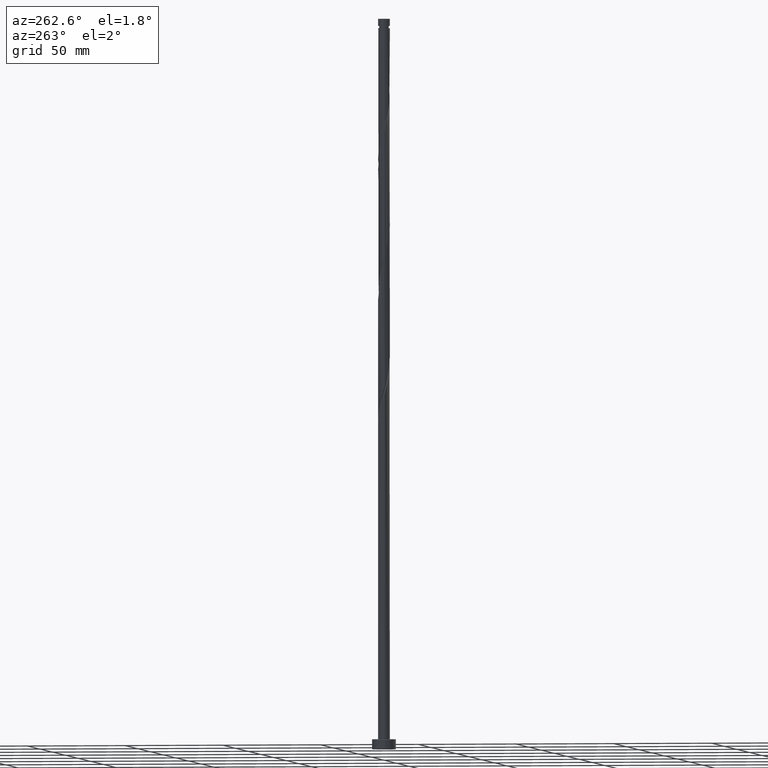
[diagram: clean part render]
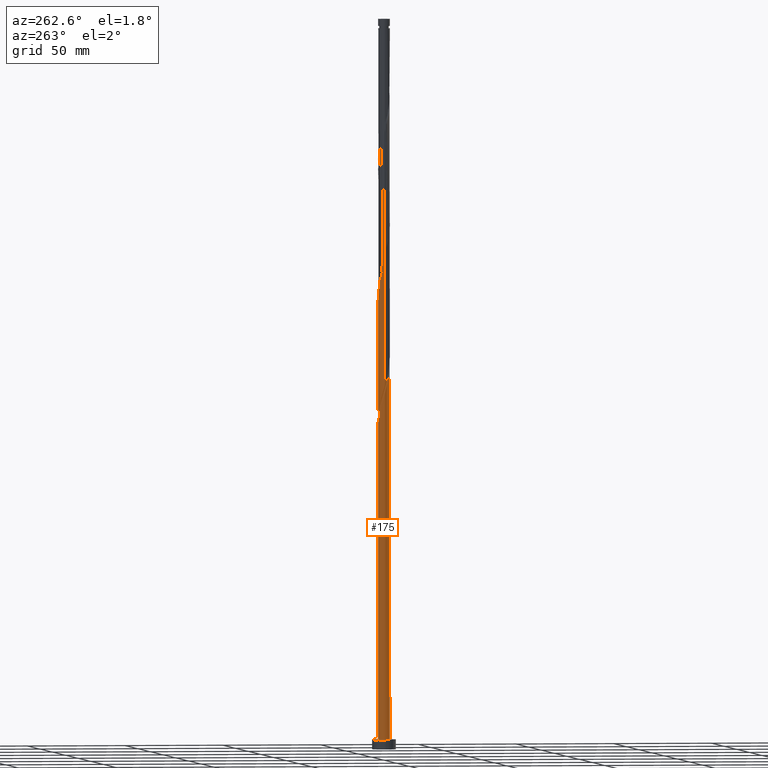
[diagram: same view with one face highlighted and labeled with its STEP entity id]
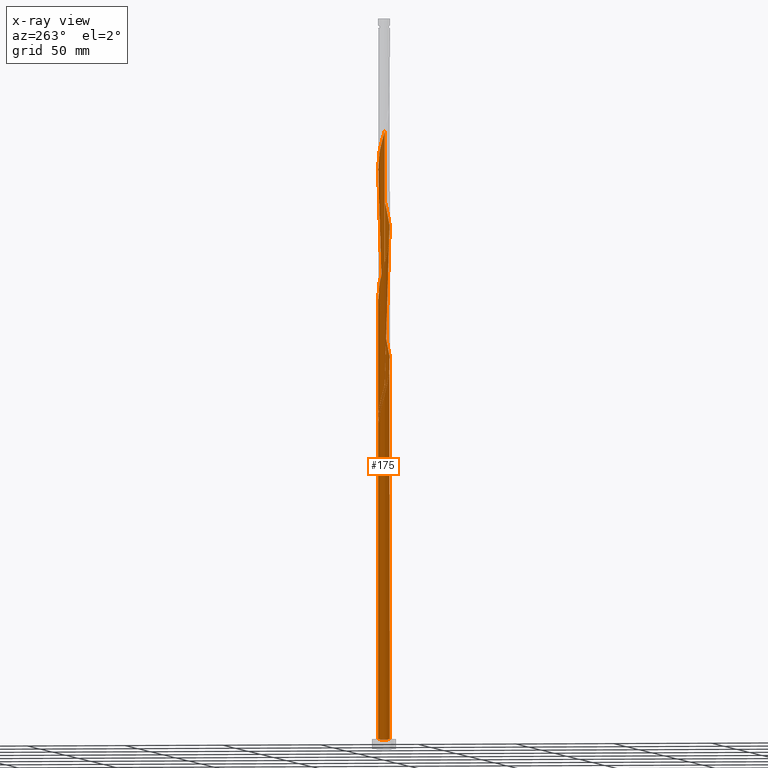
[diagram: x-ray of the same camera — body ghosted, the highlighted face saturated]
A machine part, auxiliary view. The second image highlights one B-rep face of the part: STEP entity #175.
The next image is the same camera in x-ray: the body ghosted, the highlighted face saturated — about 0% of this face is hidden behind the body in this view.
In plain terms, the highlighted cylindrical surface (bore or boss wall) has radius 3 mm, axis along (-0, -0, -1).
Its self-contained STEP definition (entity closure, byte-faithful):
#10 = CARTESIAN_POINT ( 'NONE',  ( 1.484415317302711257, -2.626010904050889216, 269.2715949954348389 ) ) ;
#22 = CARTESIAN_POINT ( 'NONE',  ( -0.6504259784947286072, -2.928642355512055317, 194.8271505509903818 ) ) ;
#27 = CARTESIAN_POINT ( 'NONE',  ( -0.9059989139450649320, 2.877253563794377023, 300.3827061065459816 ) ) ;
#51 =( BOUNDED_CURVE ( )  B_SPLINE_CURVE ( 2, ( #1123, #1424, #1458, #127, #1324, #273, #1890, #1153, #1448, #307, #578, #1306, #1440, #1143, #847 ),
 .UNSPECIFIED., .F., .T. ) 
 B_SPLINE_CURVE_WITH_KNOTS ( ( 3, 2, 2, 2, 2, 2, 2, 3 ),
 ( 0.000000000000000000, 0.008333333333333303727, 0.01666666666666671848, 0.02500000000000002220, 0.03333333333333332593, 0.04166666666666662966, 0.05000000000000004441, 0.05452860127731171819 ),
 .UNSPECIFIED. ) 
 CURVE ( )  GEOMETRIC_REPRESENTATION_ITEM ( )  RATIONAL_B_SPLINE_CURVE ( ( 0.9090909090909596868, 0.9041108139712075165, 0.9090909090909596868, 0.9041108139712075165, 0.9090909090909596868, 0.9041108139712075165, 0.9090909090909596868, 0.9041108139712075165, 0.9090909090909596868, 0.9041108139712075165, 0.9090909090909596868, 0.9041108139712075165, 0.9090909090909596868, 0.9063845652765064598, 0.9066196499552479082 ) ) 
 REPRESENTATION_ITEM ( '' )  );
#64 = CARTESIAN_POINT ( 'NONE',  ( -0.5969924622639746215, 2.940000000000003944, 165.9382616621015245 ) ) ;
#83 = AXIS2_PLACEMENT_3D ( 'NONE', #361, #1533, #684 ) ;
#92 = CARTESIAN_POINT ( 'NONE',  ( -0.02731362638453989355, -2.999875658392152644, 197.0493727732125819 ) ) ;
#101 = CARTESIAN_POINT ( 'NONE',  ( 1.741185482790979400, -2.443004935426445368, 203.7160394398792675 ) ) ;
#105 = CIRCLE ( 'NONE', #533, 3.000000000000000444 ) ;
#107 = CARTESIAN_POINT ( 'NONE',  ( -3.000000000000000888, -3.303599807966958240E-15, 184.7303715722896982 ) ) ;
#110 = ORIENTED_EDGE ( 'NONE', *, *, #1060, .F. ) ;
#112 = CARTESIAN_POINT ( 'NONE',  ( -1.741185482790980510, 2.443004935426444924, 237.0493727732126388 ) ) ;
#121 = ORIENTED_EDGE ( 'NONE', *, *, #1146, .T. ) ;
#123 = CARTESIAN_POINT ( 'NONE',  ( 0.2879860105828854766, -3.002746436205633529, 198.1604838843238099 ) ) ;
#127 = CARTESIAN_POINT ( 'NONE',  ( -1.484415317302711479, 2.626010904050888772, 169.2715949954348957 ) ) ;
#132 = CARTESIAN_POINT ( 'NONE',  ( 2.766788993523062956, 1.201790650553046236, 218.1604838843238383 ) ) ;
#138 = VECTOR ( 'NONE', #1592, 1000.000000000000000 ) ;
#144 = CARTESIAN_POINT ( 'NONE',  ( 2.986297077045553916, 0.2864083930844372738, 281.4938172176570106 ) ) ;
#151 = VERTEX_POINT ( 'NONE', #216 ) ;
#153 = CARTESIAN_POINT ( 'NONE',  ( 2.861491667719902487, 0.9010357570982412412, 283.7160394398793528 ) ) ;
#163 = CARTESIAN_POINT ( 'NONE',  ( 2.424175730171097776, -1.795214230025627078, 273.7160394398793528 ) ) ;
#174 = CARTESIAN_POINT ( 'NONE',  ( 2.744447700168711535, -1.251970017003503743, 275.9382616621016382 ) ) ;
#175 = ADVANCED_FACE ( 'NONE', ( #1224 ), #1812, .T. ) ;
#184 = CARTESIAN_POINT ( 'NONE',  ( -2.844610918258240861, 0.9529893618115767850, 310.3827061065459247 ) ) ;
#192 = CARTESIAN_POINT ( 'NONE',  ( 0.5969924622639758427, 2.940000000000000391, 165.9382616621015245 ) ) ;
#216 = CARTESIAN_POINT ( 'NONE',  ( -3.000000000000005773, -3.692258608904220948E-15, 180.4794850852466936 ) ) ;
#233 = CARTESIAN_POINT ( 'NONE',  ( -2.611625341554442148, -1.476283534877588677, 185.9382616621014961 ) ) ;
#249 = CARTESIAN_POINT ( 'NONE',  ( 2.247618455994266906, 1.987010638188425604, 221.4938172176569822 ) ) ;
#256 = CARTESIAN_POINT ( 'NONE',  ( 0.000000000000000000, 0.000000000000000000, 165.9382616621015245 ) ) ;
#258 = CARTESIAN_POINT ( 'NONE',  ( 2.744447700168711535, -1.251970017003503743, 209.2715949954348957 ) ) ;
#268 = CARTESIAN_POINT ( 'NONE',  ( -2.456461689585825336, -1.750776419202130008, 253.7160394398793528 ) ) ;
#273 = CARTESIAN_POINT ( 'NONE',  ( -1.997955648279250651, 2.259998966802001963, 171.4938172176571243 ) ) ;
#278 = CARTESIAN_POINT ( 'NONE',  ( 0.2879860105828854766, -3.002746436205633529, 264.8271505509904387 ) ) ;
#284 = ORIENTED_EDGE ( 'NONE', *, *, #1659, .F. ) ;
#287 = CARTESIAN_POINT ( 'NONE',  ( 2.956194341916742907, 0.6002808636434368017, 215.9382616621014961 ) ) ;
#303 = CARTESIAN_POINT ( 'NONE',  ( 2.247618455994266906, 1.987010638188425604, 288.1604838843236394 ) ) ;
#307 = CARTESIAN_POINT ( 'NONE',  ( -2.744447700168711535, 1.251970017003503077, 175.9382616621015245 ) ) ;
#311 = CARTESIAN_POINT ( 'NONE',  ( -1.195207115623887484, 2.751632233922631787, 301.4938172176570106 ) ) ;
#315 = CARTESIAN_POINT ( 'NONE',  ( -3.000000000000005773, -3.692258608904220948E-15, 180.4794850852466936 ) ) ;
#317 = VERTEX_POINT ( 'NONE', #1390 ) ;
#319 = CARTESIAN_POINT ( 'NONE',  ( -2.584311715169903323, 1.523592123514564189, 308.1604838843237530 ) ) ;
#327 = CARTESIAN_POINT ( 'NONE',  ( -0.3426132633519627935, 2.997004880578669983, 169.2715949954348957 ) ) ;
#346 = CARTESIAN_POINT ( 'NONE',  ( -3.000000000000001776, 0.1435319978602480062, 184.2218230467256035 ) ) ;
#356 = CARTESIAN_POINT ( 'NONE',  ( -2.038775222402704479, 2.223244857174722977, 175.9382616621015529 ) ) ;
#361 = CARTESIAN_POINT ( 'NONE',  ( 0.000000000000000000, 0.000000000000000000, 370.7099999999999795 ) ) ;
#373 = CARTESIAN_POINT ( 'NONE',  ( -3.000000000000003997, -0.1435319978602584701, 180.9880336108107599 ) ) ;
#381 = CARTESIAN_POINT ( 'NONE',  ( -0.9582386936374928110, -2.860279830445438876, 193.7160394398793244 ) ) ;
#390 = CARTESIAN_POINT ( 'NONE',  ( -1.245111594254572962, -2.729413328510883474, 259.2715949954347252 ) ) ;
#397 = DIRECTION ( 'NONE',  ( -1.000000000000000000, 0.000000000000000000, 0.000000000000000000 ) ) ;
#399 = CARTESIAN_POINT ( 'NONE',  ( 0.9059989139450637108, -2.877253563794377911, 200.3827061065458963 ) ) ;
#407 = CARTESIAN_POINT ( 'NONE',  ( 2.584311715169902879, -1.523592123514564634, 208.1604838843237246 ) ) ;
#418 = CARTESIAN_POINT ( 'NONE',  ( -0.02731362638453989355, -2.999875658392152644, 263.7160394398792391 ) ) ;
#429 = CARTESIAN_POINT ( 'NONE',  ( -2.861491667719902487, -0.9010357570982423514, 250.3827061065458963 ) ) ;
#433 = LINE ( 'NONE', #1008, #138 ) ;
#436 = CARTESIAN_POINT ( 'NONE',  ( 1.997955648279250429, -2.259998966802003295, 271.4938172176571811 ) ) ;
#446 = CARTESIAN_POINT ( 'NONE',  ( 0.6504259784947300504, 2.928642355512054873, 294.8271505509902681 ) ) ;
#474 = CARTESIAN_POINT ( 'NONE',  ( 2.456461689585825781, 1.750776419202128897, 287.0493727732125535 ) ) ;
#499 = CARTESIAN_POINT ( 'NONE',  ( 0.2879860105828862538, 3.002746436205628644, 167.0493727732126104 ) ) ;
#532 = CARTESIAN_POINT ( 'NONE',  ( -0.9059989139450649320, 2.877253563794377023, 233.7160394398794097 ) ) ;
#533 = AXIS2_PLACEMENT_3D ( 'NONE', #256, #1710, #397 ) ;
#537 = LINE ( 'NONE', #1546, #1013 ) ;
#540 = CARTESIAN_POINT ( 'NONE',  ( 2.986297077045553916, 0.2864083930844372738, 214.8271505509903534 ) ) ;
#549 = CARTESIAN_POINT ( 'NONE',  ( 0.3426132633519645143, 2.997004880578675312, 229.2715949954348389 ) ) ;
#560 = CARTESIAN_POINT ( 'NONE',  ( 1.531984494871655889, 2.598546826576329405, 224.8271505509903818 ) ) ;
#570 = ORIENTED_EDGE ( 'NONE', *, *, #1156, .F. ) ;
#573 = CARTESIAN_POINT ( 'NONE',  ( 2.456461689585825781, 1.750776419202128897, 220.3827061065460384 ) ) ;
#578 = CARTESIAN_POINT ( 'NONE',  ( -2.844610918258240861, 0.9529893618115767850, 177.0493727732125819 ) ) ;
#581 = CARTESIAN_POINT ( 'NONE',  ( 2.956194341916742907, 0.6002808636434368017, 282.6049283287682101 ) ) ;
#590 = CARTESIAN_POINT ( 'NONE',  ( 2.766788993523062956, 1.201790650553046236, 284.8271505509904387 ) ) ;
#597 = CARTESIAN_POINT ( 'NONE',  ( 2.980586974261067557, -0.3407363920471047081, 279.2715949954347820 ) ) ;
#605 = CARTESIAN_POINT ( 'NONE',  ( -2.744447700168711535, 1.251970017003503077, 309.2715949954348957 ) ) ;
#613 = CARTESIAN_POINT ( 'NONE',  ( -2.211065689225174324, 2.027606598413812744, 305.9382616621014677 ) ) ;
#629 = CARTESIAN_POINT ( 'NONE',  ( -0.9582386936374900355, 2.860279830445434879, 171.4938172176570959 ) ) ;
#639 = CARTESIAN_POINT ( 'NONE',  ( -2.986297077045549919, 0.2864083930844401049, 183.7160394398792391 ) ) ;
#649 = CARTESIAN_POINT ( 'NONE',  ( -2.456461689585820007, 1.750776419202128453, 178.1604838843237815 ) ) ;
#663 = CARTESIAN_POINT ( 'NONE',  ( -1.531984494871654556, -2.598546826576331625, 191.4938172176570674 ) ) ;
#671 = CARTESIAN_POINT ( 'NONE',  ( -2.956194341916742907, -0.6002808636434371348, 249.2715949954348673 ) ) ;
#682 = CARTESIAN_POINT ( 'NONE',  ( 2.980586974261067557, -0.3407363920471047081, 212.6049283287681817 ) ) ;
#684 = DIRECTION ( 'NONE',  ( -1.000000000000000000, 0.000000000000000000, 0.000000000000000000 ) ) ;
#690 = ORIENTED_EDGE ( 'NONE', *, *, #1085, .T. ) ;
#692 = CARTESIAN_POINT ( 'NONE',  ( -1.997955648279250651, 2.259998966802001963, 238.1604838843237815 ) ) ;
#701 = CARTESIAN_POINT ( 'NONE',  ( -1.531984494871654556, -2.598546826576331625, 258.1604838843238099 ) ) ;
#711 = CARTESIAN_POINT ( 'NONE',  ( -2.211065689225174324, 2.027606598413812744, 239.2715949954347536 ) ) ;
#712 = CIRCLE ( 'NONE', #953, 3.000000000000000444 ) ;
#719 = CARTESIAN_POINT ( 'NONE',  ( 0.9582386936374933661, 2.860279830445438876, 293.7160394398792960 ) ) ;
#741 = CARTESIAN_POINT ( 'NONE',  ( 0.3426132633519645143, 2.997004880578675312, 295.9382616621016950 ) ) ;
#752 = CARTESIAN_POINT ( 'NONE',  ( -2.944774136347772853, 0.6540087066196511589, 311.4938172176571243 ) ) ;
#756 = CARTESIAN_POINT ( 'NONE',  ( -1.785379858637181183, -2.410895841875527079, 190.3827061065459532 ) ) ;
#799 = CARTESIAN_POINT ( 'NONE',  ( -1.245111594254570520, 2.729413328510880365, 172.6049283287681817 ) ) ;
#809 = CARTESIAN_POINT ( 'NONE',  ( -2.956194341916738022, 0.6002808636434372458, 182.6049283287682101 ) ) ;
#812 = CARTESIAN_POINT ( 'NONE',  ( -2.247618455994266018, -1.987010638188426936, 188.1604838843237815 ) ) ;
#828 = CARTESIAN_POINT ( 'NONE',  ( 2.861491667719902487, 0.9010357570982412412, 217.0493727732125535 ) ) ;
#832 = CARTESIAN_POINT ( 'NONE',  ( 0.000000000000000000, 0.000000000000000000, 5.000000000000000000 ) ) ;
#835 = CARTESIAN_POINT ( 'NONE',  ( -1.195207115623887484, 2.751632233922631787, 234.8271505509903818 ) ) ;
#843 = CARTESIAN_POINT ( 'NONE',  ( -2.247618455994266018, -1.987010638188426936, 254.8271505509903534 ) ) ;
#847 = CARTESIAN_POINT ( 'NONE',  ( -3.000000000000005773, -3.692258608904220948E-15, 180.4794850852466936 ) ) ;
#850 = CARTESIAN_POINT ( 'NONE',  ( -0.2879860105828837558, 3.002746436205633973, 231.4938172176571243 ) ) ;
#859 = CARTESIAN_POINT ( 'NONE',  ( -1.484415317302711479, 2.626010904050888772, 302.6049283287681533 ) ) ;
#870 = CARTESIAN_POINT ( 'NONE',  ( -3.000000000000005329, 0.1709212123393001326, 313.2072271091953439 ) ) ;
#881 = CARTESIAN_POINT ( 'NONE',  ( 2.611625341554442148, 1.476283534877588455, 285.9382616621014677 ) ) ;
#889 = CARTESIAN_POINT ( 'NONE',  ( -1.741185482790980510, 2.443004935426444924, 303.7160394398792391 ) ) ;
#898 = CARTESIAN_POINT ( 'NONE',  ( 2.584311715169902879, -1.523592123514564634, 274.8271505509903818 ) ) ;
#944 = VERTEX_POINT ( 'NONE', #64 ) ;
#947 = CARTESIAN_POINT ( 'NONE',  ( -2.861491667719902487, -0.9010357570982423514, 183.7160394398792391 ) ) ;
#953 = AXIS2_PLACEMENT_3D ( 'NONE', #1405, #1682, #1699 ) ;
#958 = CARTESIAN_POINT ( 'NONE',  ( -0.3426132633519641257, -2.997004880578674868, 195.9382616621016098 ) ) ;
#965 = CARTESIAN_POINT ( 'NONE',  ( 0.9059989139450637108, -2.877253563794377911, 267.0493727732126104 ) ) ;
#970 = CARTESIAN_POINT ( 'NONE',  ( 0.5969924622639757317, 2.940000000000000391, 165.9382616621015245 ) ) ;
#973 = CARTESIAN_POINT ( 'NONE',  ( 1.484415317302711257, -2.626010904050889216, 202.6049283287682385 ) ) ;
#985 = CARTESIAN_POINT ( 'NONE',  ( 2.844610918258240861, -0.9529893618115777842, 210.3827061065459816 ) ) ;
#993 = CARTESIAN_POINT ( 'NONE',  ( -0.5969924622639743994, 2.940000000000003944, 232.6049283287682101 ) ) ;
#996 = ORIENTED_EDGE ( 'NONE', *, *, #1799, .T. ) ;
#1004 = CARTESIAN_POINT ( 'NONE',  ( 0.9582386936374933661, 2.860279830445438876, 227.0493727732126672 ) ) ;
#1008 = CARTESIAN_POINT ( 'NONE',  ( -3.000000000000000444, 0.000000000000000000, 370.7099999999999795 ) ) ;
#1012 = CARTESIAN_POINT ( 'NONE',  ( 3.016399812174366701, -0.02746407747455959295, 280.3827061065460384 ) ) ;
#1013 = VECTOR ( 'NONE', #1257, 1000.000000000000000 ) ;
#1035 = CARTESIAN_POINT ( 'NONE',  ( -2.956194341916742907, -0.6002808636434371348, 182.6049283287682101 ) ) ;
#1049 = CARTESIAN_POINT ( 'NONE',  ( 0.02731362638454032030, 2.999875658392152644, 297.0493727732126104 ) ) ;
#1060 = EDGE_CURVE ( 'NONE', #1863, #1151, #537, .T. ) ;
#1085 = EDGE_CURVE ( 'NONE', #317, #1163, #712, .T. ) ;
#1088 =( BOUNDED_CURVE ( )  B_SPLINE_CURVE ( 2, ( #315, #373, #1245, #1035, #947, #1531, #233, #1099, #812, #1392, #756, #663, #1831, #381, #22, #958, #92, #123, #1263, #399, #1878, #973, #101, #1108, #1840, #1550, #407, #258, #985, #1558, #682, #1849, #540, #287, #828, #132, #1588, #573, #249, #1867, #1419, #560, #1117, #1004, #1703, #549, #1148, #850, #993, #532, #835, #1579, #112, #692, #711, #1272, #1292, #1138, #1735, #1253, #1128, #1857, #1712, #671, #429, #1568, #1400, #268, #843, #1429, #1695, #701, #390, #1409, #1282, #1724, #418, #278, #1436, #965, #1742, #10, #1337, #436, #1613, #163, #898, #174, #1464, #1310, #597, #1012, #144, #581, #153, #590, #881, #474, #303, #1895, #1166, #1596, #1444, #719, #446, #741, #1049, #1174, #1631, #27, #311, #859, #889, #1302, #613, #1453, #319, #605, #184, #752, #1886, #870, #1483 ),
 .UNSPECIFIED., .F., .T. ) 
 B_SPLINE_CURVE_WITH_KNOTS ( ( 3, 2, 2, 2, 2, 2, 2, 2, 2, 2, 2, 2, 2, 2, 2, 2, 2, 2, 2, 2, 2, 2, 2, 2, 2, 2, 2, 2, 2, 2, 2, 2, 2, 2, 2, 2, 2, 2, 2, 2, 2, 2, 2, 2, 2, 2, 2, 2, 2, 2, 2, 2, 2, 2, 2, 2, 2, 2, 2, 2, 2, 3 ),
 ( 0.05452860127731171819, 0.05833333333333334814, 0.06666666666666665186, 0.07499999999999995559, 0.08333333333333337034, 0.09166666666666667407, 0.09999999999999997780, 0.1083333333333332815, 0.1166666666666666963, 0.1250000000000000000, 0.1333333333333333037, 0.1416666666666667185, 0.1500000000000000222, 0.1583333333333333259, 0.1666666666666666297, 0.1750000000000000444, 0.1833333333333333481, 0.1916666666666666519, 0.1999999999999999556, 0.2083333333333333703, 0.2166666666666666741, 0.2249999999999999778, 0.2333333333333332815, 0.2416666666666666963, 0.2500000000000000000, 0.2583333333333333037, 0.2666666666666667185, 0.2750000000000000222, 0.2833333333333333259, 0.2916666666666666297, 0.3000000000000000444, 0.3083333333333333481, 0.3166666666666666519, 0.3249999999999999556, 0.3333333333333333703, 0.3416666666666666741, 0.3499999999999999778, 0.3583333333333332815, 0.3666666666666666963, 0.3750000000000000000, 0.3833333333333333037, 0.3916666666666667185, 0.4000000000000000222, 0.4083333333333333259, 0.4166666666666666297, 0.4250000000000000444, 0.4333333333333333481, 0.4416666666666666519, 0.4499999999999999556, 0.4583333333333333703, 0.4666666666666666741, 0.4749999999999999778, 0.4833333333333332815, 0.4916666666666666963, 0.5000000000000000000, 0.5083333333333333037, 0.5166666666666666075, 0.5250000000000000222, 0.5333333333333333259, 0.5416666666666667407, 0.5500000000000000444, 0.5545286012773114059 ),
 .UNSPECIFIED. ) 
 CURVE ( )  GEOMETRIC_REPRESENTATION_ITEM ( )  RATIONAL_B_SPLINE_CURVE ( ( 0.9066196499552479082, 0.9068171577856607435, 0.9090909090909596868, 0.9041108139712075165, 0.9090909090909596868, 0.9041108139712075165, 0.9090909090909596868, 0.9041108139712075165, 0.9090909090909596868, 0.9041108139712075165, 0.9090909090909596868, 0.9041108139712075165, 0.9090909090909596868, 0.9041108139712075165, 0.9090909090909596868, 0.9041108139712075165, 0.9090909090909596868, 0.9041108139712075165, 0.9090909090909596868, 0.9041108139712075165, 0.9090909090909596868, 0.9041108139712075165, 0.9090909090909596868, 0.9041108139712075165, 0.9090909090909596868, 0.9041108139712075165, 0.9090909090909596868, 0.9041108139712075165, 0.9090909090909596868, 0.9041108139712075165, 0.9090909090909596868, 0.9041108139712075165, 0.9090909090909596868, 0.9041108139712075165, 0.9090909090909596868, 0.9041108139712075165, 0.9090909090909596868, 0.9041108139712075165, 0.9090909090909596868, 0.9041108139712075165, 0.9090909090909596868, 0.9041108139712075165, 0.9090909090909596868, 0.9041108139712075165, 0.9090909090909596868, 0.9041108139712075165, 0.9090909090909596868, 0.9041108139712075165, 0.9090909090909596868, 0.9041108139712075165, 0.9090909090909596868, 0.9041108139712075165, 0.9090909090909596868, 0.9041108139712075165, 0.9090909090909596868, 0.9041108139712075165, 0.9090909090909596868, 0.9041108139712075165, 0.9090909090909596868, 0.9041108139712075165, 0.9090909090909596868, 0.9041108139712075165, 0.9090909090909596868, 0.9041108139712075165, 0.9090909090909596868, 0.9041108139712075165, 0.9090909090909596868, 0.9041108139712075165, 0.9090909090909596868, 0.9041108139712075165, 0.9090909090909596868, 0.9041108139712075165, 0.9090909090909596868, 0.9041108139712075165, 0.9090909090909596868, 0.9041108139712075165, 0.9090909090909596868, 0.9041108139712075165, 0.9090909090909596868, 0.9041108139712075165, 0.9090909090909596868, 0.9041108139712075165, 0.9090909090909596868, 0.9041108139712075165, 0.9090909090909596868, 0.9041108139712075165, 0.9090909090909596868, 0.9041108139712075165, 0.9090909090909596868, 0.9041108139712075165, 0.9090909090909596868, 0.9041108139712075165, 0.9090909090909596868, 0.9041108139712075165, 0.9090909090909596868, 0.9041108139712075165, 0.9090909090909596868, 0.9041108139712075165, 0.9090909090909596868, 0.9041108139712075165, 0.9090909090909596868, 0.9041108139712075165, 0.9090909090909596868, 0.9041108139712075165, 0.9090909090909596868, 0.9041108139712075165, 0.9090909090909596868, 0.9041108139712075165, 0.9090909090909596868, 0.9041108139712075165, 0.9090909090909596868, 0.9041108139712075165, 0.9090909090909596868, 0.9041108139712075165, 0.9090909090909596868, 0.9041108139712075165, 0.9090909090909596868, 0.9041108139712075165, 0.9090909090909596868, 0.9041108139712075165, 0.9090909090909596868, 0.9063845652765065708, 0.9066196499552477972 ) ) 
 REPRESENTATION_ITEM ( '' )  );
#1097 = CARTESIAN_POINT ( 'NONE',  ( -2.611625341554437707, 1.476283534877586678, 179.2715949954348105 ) ) ;
#1099 = CARTESIAN_POINT ( 'NONE',  ( -2.456461689585825336, -1.750776419202130008, 187.0493727732126672 ) ) ;
#1108 = CARTESIAN_POINT ( 'NONE',  ( 1.997955648279250429, -2.259998966802003295, 204.8271505509904387 ) ) ;
#1117 = CARTESIAN_POINT ( 'NONE',  ( 1.245111594254573406, 2.729413328510883474, 225.9382616621014961 ) ) ;
#1123 = CARTESIAN_POINT ( 'NONE',  ( -0.5969924622639746215, 2.940000000000003944, 165.9382616621014961 ) ) ;
#1128 = CARTESIAN_POINT ( 'NONE',  ( -2.980586974261067557, 0.3407363920471044305, 245.9382616621014392 ) ) ;
#1138 = CARTESIAN_POINT ( 'NONE',  ( -2.744447700168711535, 1.251970017003503077, 242.6049283287682101 ) ) ;
#1141 = VERTEX_POINT ( 'NONE', #970 ) ;
#1143 = CARTESIAN_POINT ( 'NONE',  ( -3.000000000000006217, 0.1709212123392883087, 179.8738937758621432 ) ) ;
#1146 = EDGE_CURVE ( 'NONE', #1163, #317, #1873, .T. ) ;
#1148 = CARTESIAN_POINT ( 'NONE',  ( 0.02731362638454032030, 2.999875658392152644, 230.3827061065458963 ) ) ;
#1151 = VERTEX_POINT ( 'NONE', #107 ) ;
#1153 = CARTESIAN_POINT ( 'NONE',  ( -2.424175730171098220, 1.795214230025626412, 173.7160394398793528 ) ) ;
#1156 = EDGE_CURVE ( 'NONE', #944, #151, #51, .T. ) ;
#1163 = VERTEX_POINT ( 'NONE', #1584 ) ;
#1166 = CARTESIAN_POINT ( 'NONE',  ( 1.785379858637181627, 2.410895841875527079, 290.3827061065459247 ) ) ;
#1174 = CARTESIAN_POINT ( 'NONE',  ( -0.2879860105828837558, 3.002746436205633973, 298.1604838843238099 ) ) ;
#1202 = CARTESIAN_POINT ( 'NONE',  ( -2.766788993523056739, 1.201790650553047346, 180.3827061065460384 ) ) ;
#1211 = CARTESIAN_POINT ( 'NONE',  ( -0.6504259784947260536, 2.928642355512050877, 170.3827061065459532 ) ) ;
#1219 = CARTESIAN_POINT ( 'NONE',  ( -2.861491667719896714, 0.9010357570982424624, 181.4938172176570674 ) ) ;
#1224 = FACE_OUTER_BOUND ( 'NONE', #1804, .T. ) ;
#1245 = CARTESIAN_POINT ( 'NONE',  ( -2.986297077045553916, -0.2864083930844388837, 181.4938172176570674 ) ) ;
#1253 = CARTESIAN_POINT ( 'NONE',  ( -2.944774136347772853, 0.6540087066196511589, 244.8271505509904671 ) ) ;
#1257 = DIRECTION ( 'NONE',  ( -0.000000000000000000, -0.000000000000000000, -1.000000000000000000 ) ) ;
#1263 = CARTESIAN_POINT ( 'NONE',  ( 0.5969924622639748435, -2.940000000000003944, 199.2715949954348389 ) ) ;
#1269 = ORIENTED_EDGE ( 'NONE', *, *, #1381, .F. ) ;
#1272 = CARTESIAN_POINT ( 'NONE',  ( -2.424175730171098220, 1.795214230025626412, 240.3827061065459816 ) ) ;
#1282 = CARTESIAN_POINT ( 'NONE',  ( -0.6504259784947286072, -2.928642355512055317, 261.4938172176570674 ) ) ;
#1292 = CARTESIAN_POINT ( 'NONE',  ( -2.584311715169903323, 1.523592123514564189, 241.4938172176570106 ) ) ;
#1302 = CARTESIAN_POINT ( 'NONE',  ( -1.997955648279250651, 2.259998966802001963, 304.8271505509904955 ) ) ;
#1306 = CARTESIAN_POINT ( 'NONE',  ( -2.944774136347772853, 0.6540087066196511589, 178.1604838843238383 ) ) ;
#1310 = CARTESIAN_POINT ( 'NONE',  ( 2.944774136347771520, -0.6540087066196529353, 278.1604838843237530 ) ) ;
#1324 = CARTESIAN_POINT ( 'NONE',  ( -1.741185482790980510, 2.443004935426444924, 170.3827061065459247 ) ) ;
#1326 = ORIENTED_EDGE ( 'NONE', *, *, #1381, .T. ) ;
#1337 = CARTESIAN_POINT ( 'NONE',  ( 1.741185482790979400, -2.443004935426445368, 270.3827061065459816 ) ) ;
#1381 = EDGE_CURVE ( 'NONE', #151, #1163, #433, .T. ) ;
#1390 = CARTESIAN_POINT ( 'NONE',  ( 3.000000000000000444, 0.000000000000000000, 5.000000000000000000 ) ) ;
#1392 = CARTESIAN_POINT ( 'NONE',  ( -2.038775222402708032, -2.223244857174725642, 189.2715949954348957 ) ) ;
#1400 = CARTESIAN_POINT ( 'NONE',  ( -2.611625341554442148, -1.476283534877588677, 252.6049283287681249 ) ) ;
#1405 = CARTESIAN_POINT ( 'NONE',  ( 0.000000000000000000, 0.000000000000000000, 5.000000000000000000 ) ) ;
#1409 = CARTESIAN_POINT ( 'NONE',  ( -0.9582386936374928110, -2.860279830445438876, 260.3827061065460384 ) ) ;
#1413 = DIRECTION ( 'NONE',  ( 1.000000000000000000, 0.000000000000000000, 0.000000000000000000 ) ) ;
#1419 = CARTESIAN_POINT ( 'NONE',  ( 1.785379858637181627, 2.410895841875527079, 223.7160394398792675 ) ) ;
#1424 = CARTESIAN_POINT ( 'NONE',  ( -0.9059989139450649320, 2.877253563794377023, 167.0493727732126388 ) ) ;
#1429 = CARTESIAN_POINT ( 'NONE',  ( -2.038775222402708032, -2.223244857174725642, 255.9382616621016098 ) ) ;
#1436 = CARTESIAN_POINT ( 'NONE',  ( 0.5969924622639748435, -2.940000000000003944, 265.9382616621014677 ) ) ;
#1440 = CARTESIAN_POINT ( 'NONE',  ( -2.980586974261067557, 0.3407363920471044305, 179.2715949954348105 ) ) ;
#1444 = CARTESIAN_POINT ( 'NONE',  ( 1.245111594254573406, 2.729413328510883474, 292.6049283287681533 ) ) ;
#1448 = CARTESIAN_POINT ( 'NONE',  ( -2.584311715169903323, 1.523592123514564189, 174.8271505509903534 ) ) ;
#1453 = CARTESIAN_POINT ( 'NONE',  ( -2.424175730171098220, 1.795214230025626412, 307.0493727732127240 ) ) ;
#1458 = CARTESIAN_POINT ( 'NONE',  ( -1.195207115623887484, 2.751632233922631787, 168.1604838843236962 ) ) ;
#1464 = CARTESIAN_POINT ( 'NONE',  ( 2.844610918258240861, -0.9529893618115777842, 277.0493727732124967 ) ) ;
#1482 =( BOUNDED_CURVE ( )  B_SPLINE_CURVE ( 2, ( #1649, #346, #639, #809, #1219, #1202, #1097, #649, #1788, #356, #1828, #1492, #799, #629, #1211, #327, #1796, #499, #192 ),
 .UNSPECIFIED., .F., .T. ) 
 B_SPLINE_CURVE_WITH_KNOTS ( ( 3, 2, 2, 2, 2, 2, 2, 2, 2, 3 ),
 ( 0.9295286012773114059, 0.9333333333333333481, 0.9416666666666666519, 0.9499999999999999556, 0.9583333333333333703, 0.9666666666666666741, 0.9749999999999999778, 0.9833333333333332815, 0.9916666666666666963, 1.000000000000000000 ),
 .UNSPECIFIED. ) 
 CURVE ( )  GEOMETRIC_REPRESENTATION_ITEM ( )  RATIONAL_B_SPLINE_CURVE ( ( 0.9066196499552413579, 0.9068171577856540821, 0.9090909090909530255, 0.9041108139712011882, 0.9090909090909530255, 0.9041108139712011882, 0.9090909090909530255, 0.9041108139712011882, 0.9090909090909530255, 0.9041108139712011882, 0.9090909090909530255, 0.9041108139712011882, 0.9090909090909530255, 0.9041108139712011882, 0.9090909090909530255, 0.9041108139712011882, 0.9090909090909530255, 0.9041108139712011882, 0.9090909090909530255 ) ) 
 REPRESENTATION_ITEM ( '' )  );
#1483 = CARTESIAN_POINT ( 'NONE',  ( -3.000000000000005329, -1.435047880383826885E-15, 313.8128184185799796 ) ) ;
#1492 = CARTESIAN_POINT ( 'NONE',  ( -1.531984494871651226, 2.598546826576326740, 173.7160394398793528 ) ) ;
#1531 = CARTESIAN_POINT ( 'NONE',  ( -2.766788993523062512, -1.201790650553048012, 184.8271505509904671 ) ) ;
#1533 = DIRECTION ( 'NONE',  ( -0.000000000000000000, -0.000000000000000000, -1.000000000000000000 ) ) ;
#1546 = CARTESIAN_POINT ( 'NONE',  ( -3.000000000000000444, 0.000000000000000000, 370.7099999999999795 ) ) ;
#1550 = CARTESIAN_POINT ( 'NONE',  ( 2.424175730171097776, -1.795214230025627078, 207.0493727732126672 ) ) ;
#1556 = CARTESIAN_POINT ( 'NONE',  ( -3.000000000000005329, -1.435047880383826885E-15, 313.8128184185799796 ) ) ;
#1558 = CARTESIAN_POINT ( 'NONE',  ( 2.944774136347771520, -0.6540087066196529353, 211.4938172176571527 ) ) ;
#1563 = DIRECTION ( 'NONE',  ( 0.000000000000000000, 0.000000000000000000, 1.000000000000000000 ) ) ;
#1568 = CARTESIAN_POINT ( 'NONE',  ( -2.766788993523062512, -1.201790650553048012, 251.4938172176571243 ) ) ;
#1579 = CARTESIAN_POINT ( 'NONE',  ( -1.484415317302711479, 2.626010904050888772, 235.9382616621016098 ) ) ;
#1584 = CARTESIAN_POINT ( 'NONE',  ( -3.000000000000000444, 0.000000000000000000, 5.000000000000000000 ) ) ;
#1588 = CARTESIAN_POINT ( 'NONE',  ( 2.611625341554442148, 1.476283534877588455, 219.2715949954348389 ) ) ;
#1592 = DIRECTION ( 'NONE',  ( -0.000000000000000000, -0.000000000000000000, -1.000000000000000000 ) ) ;
#1596 = CARTESIAN_POINT ( 'NONE',  ( 1.531984494871655889, 2.598546826576329405, 291.4938172176571243 ) ) ;
#1613 = CARTESIAN_POINT ( 'NONE',  ( 2.211065689225173880, -2.027606598413812744, 272.6049283287682101 ) ) ;
#1631 = CARTESIAN_POINT ( 'NONE',  ( -0.5969924622639743994, 2.940000000000003944, 299.2715949954348389 ) ) ;
#1649 = CARTESIAN_POINT ( 'NONE',  ( -3.000000000000000888, -3.303599807966958240E-15, 184.7303715722896982 ) ) ;
#1659 = EDGE_CURVE ( 'NONE', #151, #1863, #1088, .T. ) ;
#1682 = DIRECTION ( 'NONE',  ( 0.000000000000000000, 0.000000000000000000, 1.000000000000000000 ) ) ;
#1695 = CARTESIAN_POINT ( 'NONE',  ( -1.785379858637181183, -2.410895841875527079, 257.0493727732126104 ) ) ;
#1699 = DIRECTION ( 'NONE',  ( 1.000000000000000000, 0.000000000000000000, 0.000000000000000000 ) ) ;
#1703 = CARTESIAN_POINT ( 'NONE',  ( 0.6504259784947300504, 2.928642355512054873, 228.1604838843237246 ) ) ;
#1710 = DIRECTION ( 'NONE',  ( 0.000000000000000000, -0.000000000000000000, -1.000000000000000000 ) ) ;
#1712 = CARTESIAN_POINT ( 'NONE',  ( -2.986297077045553916, -0.2864083930844388837, 248.1604838843237246 ) ) ;
#1717 = AXIS2_PLACEMENT_3D ( 'NONE', #832, #1563, #1413 ) ;
#1718 = ORIENTED_EDGE ( 'NONE', *, *, #1754, .F. ) ;
#1724 = CARTESIAN_POINT ( 'NONE',  ( -0.3426132633519641257, -2.997004880578674868, 262.6049283287681533 ) ) ;
#1735 = CARTESIAN_POINT ( 'NONE',  ( -2.844610918258240861, 0.9529893618115767850, 243.7160394398792675 ) ) ;
#1742 = CARTESIAN_POINT ( 'NONE',  ( 1.195207115623887262, -2.751632233922632675, 268.1604838843236394 ) ) ;
#1754 = EDGE_CURVE ( 'NONE', #1151, #1141, #1482, .T. ) ;
#1788 = CARTESIAN_POINT ( 'NONE',  ( -2.247618455994261577, 1.987010638188425382, 177.0493727732126388 ) ) ;
#1796 = CARTESIAN_POINT ( 'NONE',  ( -0.02731362638453812067, 2.999875658392149536, 168.1604838843237246 ) ) ;
#1799 = EDGE_CURVE ( 'NONE', #944, #1141, #105, .T. ) ;
#1804 = EDGE_LOOP ( 'NONE', ( #110, #284, #1326, #121, #690, #1269, #570, #996, #1718 ) ) ;
#1812 = CYLINDRICAL_SURFACE ( 'NONE', #83, 3.000000000000000444 ) ;
#1828 = CARTESIAN_POINT ( 'NONE',  ( -1.785379858637177186, 2.410895841875524859, 174.8271505509904102 ) ) ;
#1831 = CARTESIAN_POINT ( 'NONE',  ( -1.245111594254572962, -2.729413328510883474, 192.6049283287680964 ) ) ;
#1840 = CARTESIAN_POINT ( 'NONE',  ( 2.211065689225173880, -2.027606598413812744, 205.9382616621014961 ) ) ;
#1849 = CARTESIAN_POINT ( 'NONE',  ( 3.016399812174366701, -0.02746407747455959295, 213.7160394398792960 ) ) ;
#1857 = CARTESIAN_POINT ( 'NONE',  ( -3.016399812174365813, 0.02746407747455864579, 247.0493727732126672 ) ) ;
#1863 = VERTEX_POINT ( 'NONE', #1556 ) ;
#1867 = CARTESIAN_POINT ( 'NONE',  ( 2.038775222402708032, 2.223244857174725642, 222.6049283287681817 ) ) ;
#1873 = CIRCLE ( 'NONE', #1717, 3.000000000000000444 ) ;
#1878 = CARTESIAN_POINT ( 'NONE',  ( 1.195207115623887262, -2.751632233922632675, 201.4938172176570390 ) ) ;
#1886 = CARTESIAN_POINT ( 'NONE',  ( -2.980586974261067557, 0.3407363920471044305, 312.6049283287681533 ) ) ;
#1890 = CARTESIAN_POINT ( 'NONE',  ( -2.211065689225174324, 2.027606598413812744, 172.6049283287681533 ) ) ;
#1895 = CARTESIAN_POINT ( 'NONE',  ( 2.038775222402708032, 2.223244857174725642, 289.2715949954349526 ) ) ;